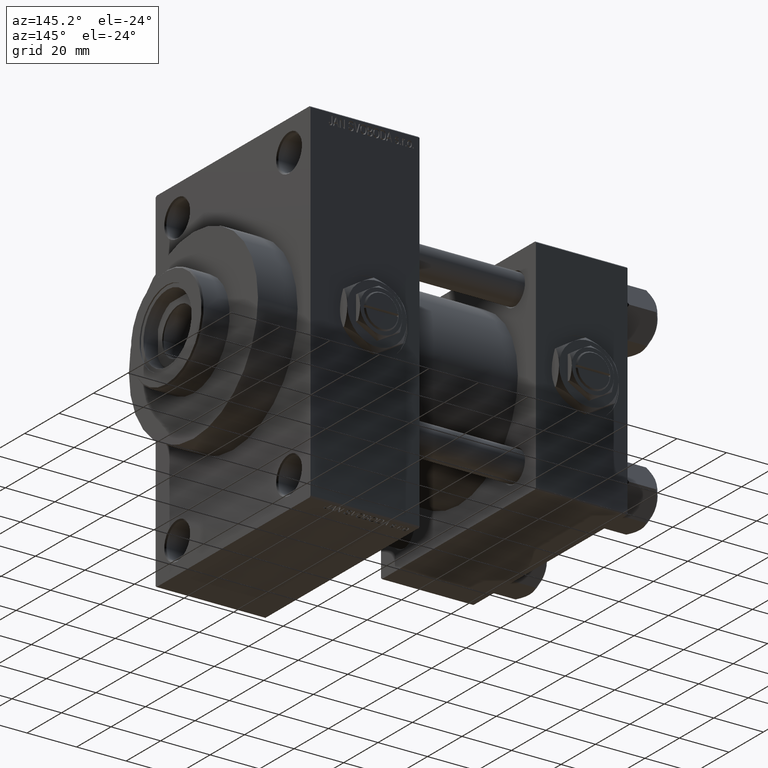
[diagram: clean part render]
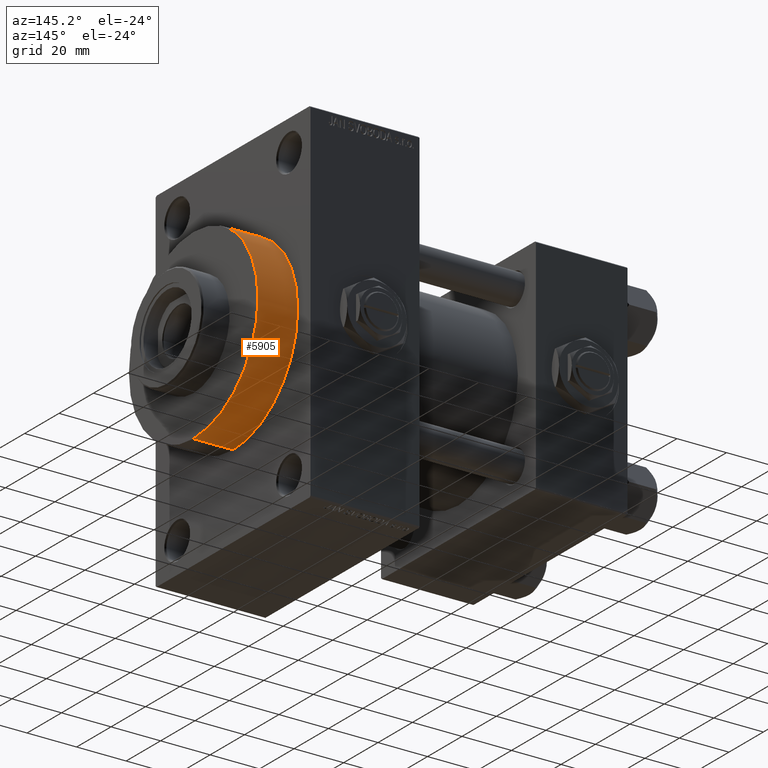
[diagram: same view with one face highlighted and labeled with its STEP entity id]
A machine part, auxiliary view. The second image highlights one B-rep face of the part: STEP entity #5905.
In plain terms, the highlighted cylindrical surface (partial cylindrical patch) has radius 37.5 mm, axis along (-1, -0, -0).
Its self-contained STEP definition (entity closure, byte-faithful):
#358 = FACE_OUTER_BOUND ( 'NONE', #46624, .T. ) ;
#605 = DIRECTION ( 'NONE',  ( -1.000000000000000000, -0.000000000000000000, -0.000000000000000000 ) ) ;
#1325 = DIRECTION ( 'NONE',  ( -1.000000000000000000, -0.000000000000000000, -0.000000000000000000 ) ) ;
#2226 = VECTOR ( 'NONE', #1325, 1000.000000000000000 ) ;
#4718 = EDGE_CURVE ( 'NONE', #36571, #20506, #18905, .T. ) ;
#5905 = ADVANCED_FACE ( 'NONE', ( #358 ), #15313, .T. ) ;
#7212 = CARTESIAN_POINT ( 'NONE',  ( 144.0000000000000284, 4.592425496802575156E-15, -37.50000000000000711 ) ) ;
#7866 = EDGE_CURVE ( 'NONE', #46872, #36571, #35242, .T. ) ;
#8315 = DIRECTION ( 'NONE',  ( 0.000000000000000000, 0.000000000000000000, -1.000000000000000000 ) ) ;
#8568 = ORIENTED_EDGE ( 'NONE', *, *, #9113, .F. ) ;
#9113 = EDGE_CURVE ( 'NONE', #20191, #20506, #39876, .T. ) ;
#9130 = ORIENTED_EDGE ( 'NONE', *, *, #18098, .F. ) ;
#10198 = DIRECTION ( 'NONE',  ( -1.000000000000000000, -0.000000000000000000, -0.000000000000000000 ) ) ;
#12057 = CARTESIAN_POINT ( 'NONE',  ( 144.0000000000000284, 0.000000000000000000, 0.000000000000000000 ) ) ;
#12445 = ORIENTED_EDGE ( 'NONE', *, *, #7866, .T. ) ;
#15313 = CYLINDRICAL_SURFACE ( 'NONE', #39602, 37.50000000000000711 ) ;
#17672 = DIRECTION ( 'NONE',  ( 0.000000000000000000, 0.000000000000000000, -1.000000000000000000 ) ) ;
#18098 = EDGE_CURVE ( 'NONE', #46872, #20191, #44685, .T. ) ;
#18905 = CIRCLE ( 'NONE', #49129, 37.50000000000000711 ) ;
#19078 = CARTESIAN_POINT ( 'NONE',  ( 144.0000000000000284, 0.000000000000000000, 0.000000000000000000 ) ) ;
#20191 = VERTEX_POINT ( 'NONE', #20409 ) ;
#20409 = CARTESIAN_POINT ( 'NONE',  ( 144.0000000000000284, 0.000000000000000000, 37.50000000000000711 ) ) ;
#20506 = VERTEX_POINT ( 'NONE', #42036 ) ;
#20987 = ORIENTED_EDGE ( 'NONE', *, *, #4718, .T. ) ;
#21422 = CARTESIAN_POINT ( 'NONE',  ( 128.0000000000000000, 0.000000000000000000, 0.000000000000000000 ) ) ;
#23206 = AXIS2_PLACEMENT_3D ( 'NONE', #12057, #42479, #8315 ) ;
#32244 = CARTESIAN_POINT ( 'NONE',  ( 144.0000000000000284, 4.592425496802575156E-15, -37.50000000000000711 ) ) ;
#33456 = CARTESIAN_POINT ( 'NONE',  ( 128.0000000000000000, 4.592425496802575156E-15, -37.50000000000000711 ) ) ;
#34752 = DIRECTION ( 'NONE',  ( 0.000000000000000000, 0.000000000000000000, 1.000000000000000000 ) ) ;
#35242 = LINE ( 'NONE', #32244, #2226 ) ;
#36571 = VERTEX_POINT ( 'NONE', #33456 ) ;
#36613 = DIRECTION ( 'NONE',  ( 1.000000000000000000, 0.000000000000000000, 0.000000000000000000 ) ) ;
#39602 = AXIS2_PLACEMENT_3D ( 'NONE', #19078, #605, #34752 ) ;
#39876 = LINE ( 'NONE', #47845, #46064 ) ;
#42036 = CARTESIAN_POINT ( 'NONE',  ( 128.0000000000000000, 0.000000000000000000, 37.50000000000000711 ) ) ;
#42479 = DIRECTION ( 'NONE',  ( 1.000000000000000000, 0.000000000000000000, 0.000000000000000000 ) ) ;
#44685 = CIRCLE ( 'NONE', #23206, 37.50000000000000711 ) ;
#46064 = VECTOR ( 'NONE', #10198, 1000.000000000000000 ) ;
#46624 = EDGE_LOOP ( 'NONE', ( #9130, #12445, #20987, #8568 ) ) ;
#46872 = VERTEX_POINT ( 'NONE', #7212 ) ;
#47845 = CARTESIAN_POINT ( 'NONE',  ( 144.0000000000000284, 0.000000000000000000, 37.50000000000000711 ) ) ;
#49129 = AXIS2_PLACEMENT_3D ( 'NONE', #21422, #36613, #17672 ) ;